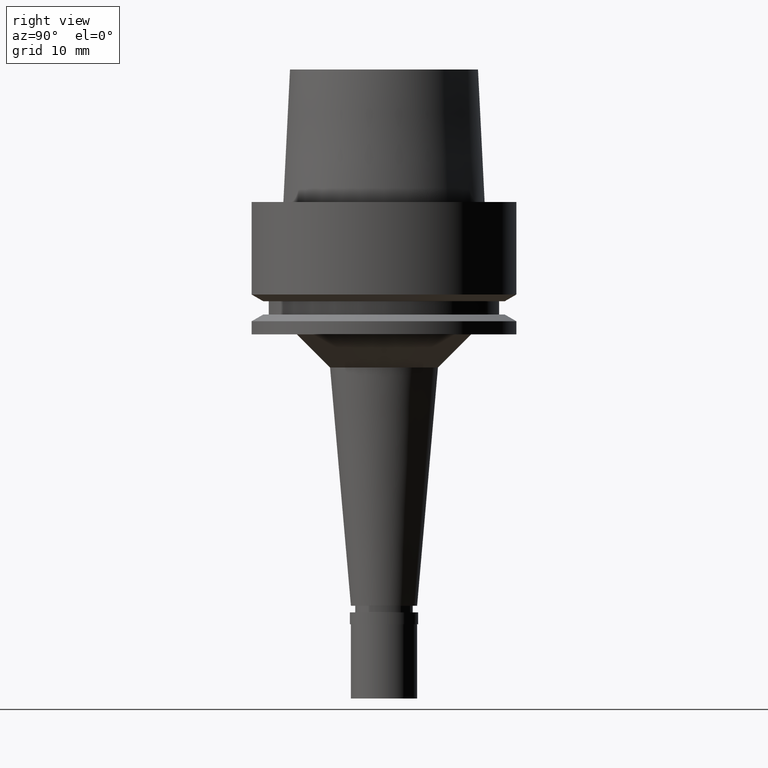
[diagram: clean part render]
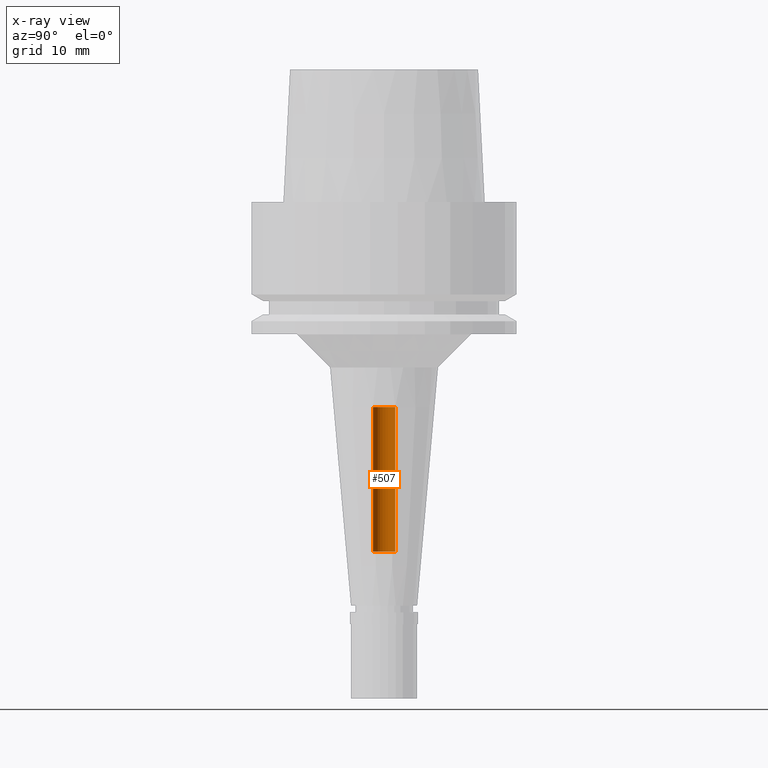
[diagram: x-ray — body ghosted, one internal face saturated and labeled with its STEP entity id]
A machine part, right view, then the same camera in x-ray: the body is ghosted and one INTERNAL B-rep face — a face not visible from any outside direction — is saturated and labeled: STEP entity #507.
In plain terms, the highlighted cylindrical surface (edge-blend (fillet) strip) has radius 1.7 mm, axis along (0, 0, 1).
Its self-contained STEP definition (entity closure, byte-faithful):
#59 = ORIENTED_EDGE ( 'NONE', *, *, #365, .T. ) ;
#64 = CARTESIAN_POINT ( 'NONE',  ( 0.0000000000000000000, -1.699999999999999956, -52.79999999999999716 ) ) ;
#67 = DIRECTION ( 'NONE',  ( 0.0000000000000000000, 0.0000000000000000000, -1.000000000000000000 ) ) ;
#108 = LINE ( 'NONE', #64, #1112 ) ;
#345 = CARTESIAN_POINT ( 'NONE',  ( 0.0000000000000000000, 1.699999999999999956, -52.79999999999999716 ) ) ;
#365 = EDGE_CURVE ( 'NONE', #2276, #1947, #968, .T. ) ;
#391 = DIRECTION ( 'NONE',  ( 0.0000000000000000000, 1.000000000000000000, 0.0000000000000000000 ) ) ;
#507 = ADVANCED_FACE ( 'NONE', ( #1115 ), #2583, .F. ) ;
#510 = EDGE_CURVE ( 'NONE', #2497, #808, #108, .T. ) ;
#512 = DIRECTION ( 'NONE',  ( 0.0000000000000000000, -1.000000000000000000, 0.0000000000000000000 ) ) ;
#522 = CARTESIAN_POINT ( 'NONE',  ( 0.0000000000000000000, 1.699999999999999956, -31.00000000000000000 ) ) ;
#601 = DIRECTION ( 'NONE',  ( 0.0000000000000000000, 0.0000000000000000000, 1.000000000000000000 ) ) ;
#686 = CARTESIAN_POINT ( 'NONE',  ( 0.0000000000000000000, 0.0000000000000000000, -31.00000000000000000 ) ) ;
#714 = DIRECTION ( 'NONE',  ( 0.0000000000000000000, 0.0000000000000000000, 1.000000000000000000 ) ) ;
#727 = ORIENTED_EDGE ( 'NONE', *, *, #2039, .T. ) ;
#808 = VERTEX_POINT ( 'NONE', #965 ) ;
#827 = CARTESIAN_POINT ( 'NONE',  ( 0.0000000000000000000, 1.699999999999999956, -52.79999999999999716 ) ) ;
#965 = CARTESIAN_POINT ( 'NONE',  ( 0.0000000000000000000, -1.699999999999999956, -31.00000000000000000 ) ) ;
#968 = LINE ( 'NONE', #345, #988 ) ;
#988 = VECTOR ( 'NONE', #1188, 1000.000000000000000 ) ;
#1112 = VECTOR ( 'NONE', #714, 1000.000000000000000 ) ;
#1115 = FACE_OUTER_BOUND ( 'NONE', #1707, .T. ) ;
#1124 = CARTESIAN_POINT ( 'NONE',  ( 0.0000000000000000000, -1.699999999999999956, -52.79999999999999716 ) ) ;
#1140 = DIRECTION ( 'NONE',  ( 0.0000000000000000000, 0.0000000000000000000, 1.000000000000000000 ) ) ;
#1141 = CIRCLE ( 'NONE', #2693, 1.699999999999999956 ) ;
#1188 = DIRECTION ( 'NONE',  ( 0.0000000000000000000, 0.0000000000000000000, 1.000000000000000000 ) ) ;
#1306 = ORIENTED_EDGE ( 'NONE', *, *, #510, .F. ) ;
#1707 = EDGE_LOOP ( 'NONE', ( #727, #1306, #2195, #59 ) ) ;
#1859 = AXIS2_PLACEMENT_3D ( 'NONE', #2167, #1140, #1922 ) ;
#1879 = AXIS2_PLACEMENT_3D ( 'NONE', #2112, #67, #512 ) ;
#1919 = EDGE_CURVE ( 'NONE', #2497, #2276, #2138, .T. ) ;
#1922 = DIRECTION ( 'NONE',  ( 0.0000000000000000000, 1.000000000000000000, 0.0000000000000000000 ) ) ;
#1947 = VERTEX_POINT ( 'NONE', #522 ) ;
#2039 = EDGE_CURVE ( 'NONE', #1947, #808, #1141, .T. ) ;
#2112 = CARTESIAN_POINT ( 'NONE',  ( 0.0000000000000000000, 0.0000000000000000000, -52.79999999999999716 ) ) ;
#2138 = CIRCLE ( 'NONE', #1879, 1.699999999999999956 ) ;
#2167 = CARTESIAN_POINT ( 'NONE',  ( 0.0000000000000000000, 0.0000000000000000000, -75.86499999999999488 ) ) ;
#2195 = ORIENTED_EDGE ( 'NONE', *, *, #1919, .T. ) ;
#2276 = VERTEX_POINT ( 'NONE', #827 ) ;
#2497 = VERTEX_POINT ( 'NONE', #1124 ) ;
#2583 = CYLINDRICAL_SURFACE ( 'NONE', #1859, 1.699999999999999956 ) ;
#2693 = AXIS2_PLACEMENT_3D ( 'NONE', #686, #601, #391 ) ;